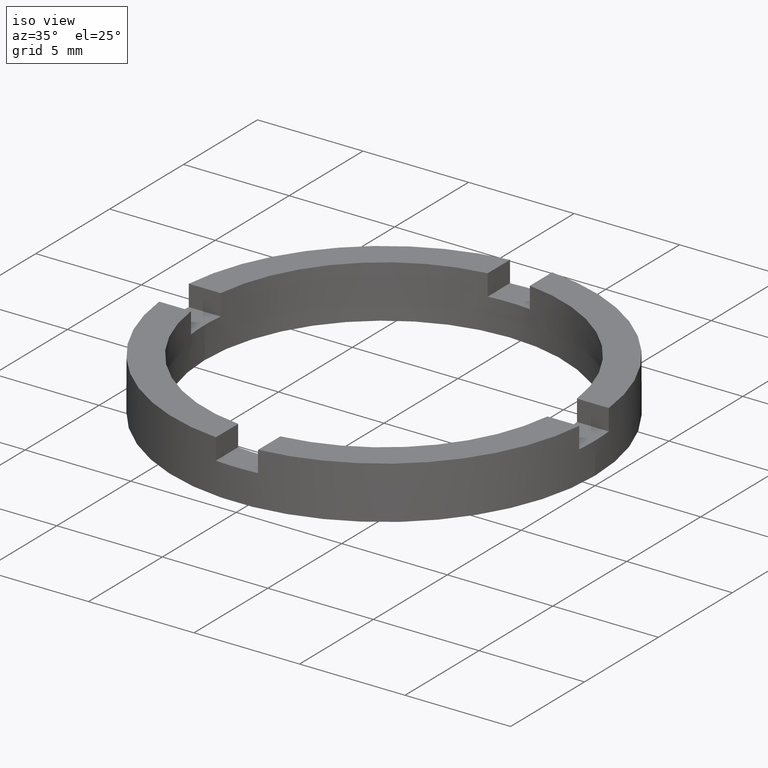
[diagram: clean part render]
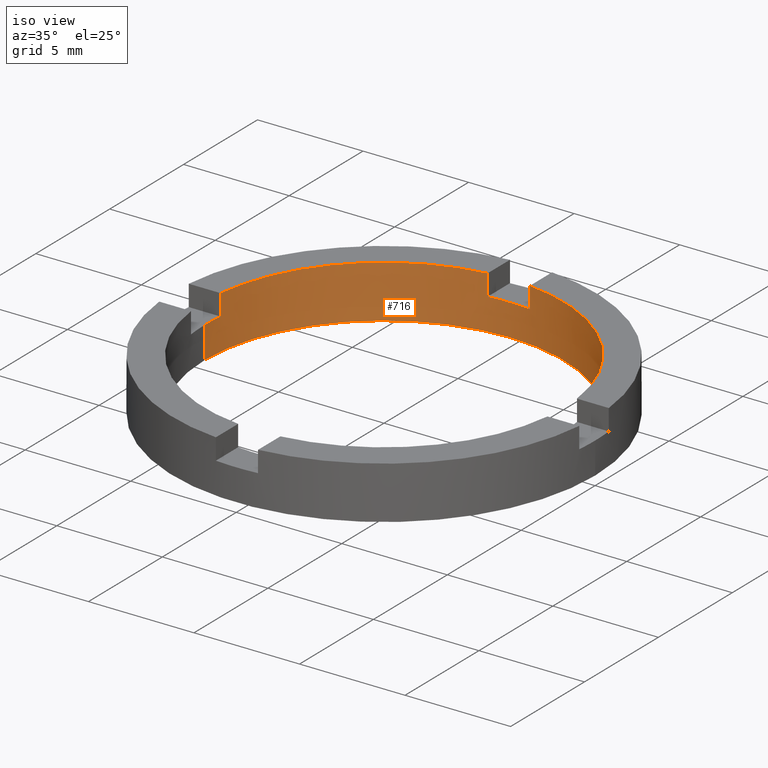
[diagram: same view with one face highlighted and labeled with its STEP entity id]
A machine part, iso view. The second image highlights one B-rep face of the part: STEP entity #716.
In plain terms, the highlighted cylindrical surface (partial cylindrical patch) has radius 8.5 mm, axis along (-0, -0, -1).
Its self-contained STEP definition (entity closure, byte-faithful):
#1 = ORIENTED_EDGE ( 'NONE', *, *, #573, .T. ) ;
#2 = ORIENTED_EDGE ( 'NONE', *, *, #240, .F. ) ;
#8 = ORIENTED_EDGE ( 'NONE', *, *, #330, .T. ) ;
#13 = VERTEX_POINT ( 'NONE', #334 ) ;
#14 = ORIENTED_EDGE ( 'NONE', *, *, #306, .T. ) ;
#26 = VERTEX_POINT ( 'NONE', #732 ) ;
#37 = EDGE_CURVE ( 'NONE', #282, #461, #416, .T. ) ;
#38 = CARTESIAN_POINT ( 'NONE',  ( -8.440971508067063311, 1.000000000000030642, 2.500000000000000000 ) ) ;
#52 = CARTESIAN_POINT ( 'NONE',  ( -8.500000000000000000, 0.000000000000000000, 2.500000000000000000 ) ) ;
#58 = DIRECTION ( 'NONE',  ( -1.000000000000000000, 0.000000000000000000, 0.000000000000000000 ) ) ;
#64 = AXIS2_PLACEMENT_3D ( 'NONE', #455, #761, #617 ) ;
#91 = ORIENTED_EDGE ( 'NONE', *, *, #500, .F. ) ;
#101 = CARTESIAN_POINT ( 'NONE',  ( 8.440971508067070417, 0.9999999999999672484, 1.500000000000000000 ) ) ;
#114 = EDGE_CURVE ( 'NONE', #742, #122, #161, .T. ) ;
#115 = ORIENTED_EDGE ( 'NONE', *, *, #608, .F. ) ;
#122 = VERTEX_POINT ( 'NONE', #399 ) ;
#124 = CIRCLE ( 'NONE', #441, 8.500000000000000000 ) ;
#142 = LINE ( 'NONE', #623, #405 ) ;
#161 = LINE ( 'NONE', #535, #425 ) ;
#165 = CIRCLE ( 'NONE', #64, 8.500000000000000000 ) ;
#168 = CIRCLE ( 'NONE', #561, 8.500000000000000000 ) ;
#173 = VERTEX_POINT ( 'NONE', #764 ) ;
#176 = DIRECTION ( 'NONE',  ( 1.000000000000000000, 4.440892098500626162E-15, 0.000000000000000000 ) ) ;
#183 = CIRCLE ( 'NONE', #602, 8.500000000000000000 ) ;
#185 = VERTEX_POINT ( 'NONE', #275 ) ;
#186 = FACE_OUTER_BOUND ( 'NONE', #280, .T. ) ;
#187 = VECTOR ( 'NONE', #295, 1000.000000000000000 ) ;
#189 = CIRCLE ( 'NONE', #297, 8.500000000000000000 ) ;
#212 = DIRECTION ( 'NONE',  ( -0.000000000000000000, -0.000000000000000000, -1.000000000000000000 ) ) ;
#225 = AXIS2_PLACEMENT_3D ( 'NONE', #314, #212, #58 ) ;
#229 = CARTESIAN_POINT ( 'NONE',  ( 0.000000000000000000, 0.000000000000000000, 0.000000000000000000 ) ) ;
#240 = EDGE_CURVE ( 'NONE', #461, #173, #423, .T. ) ;
#267 = DIRECTION ( 'NONE',  ( 1.000000000000000000, -1.509903313490213211E-14, 0.000000000000000000 ) ) ;
#275 = CARTESIAN_POINT ( 'NONE',  ( -8.440971508067063311, 1.000000000000030642, 1.500000000000000000 ) ) ;
#280 = EDGE_LOOP ( 'NONE', ( #454, #91, #288, #1, #2, #286, #560, #8, #115, #779, #14, #518 ) ) ;
#282 = VERTEX_POINT ( 'NONE', #545 ) ;
#286 = ORIENTED_EDGE ( 'NONE', *, *, #37, .F. ) ;
#288 = ORIENTED_EDGE ( 'NONE', *, *, #313, .T. ) ;
#291 = CARTESIAN_POINT ( 'NONE',  ( -0.9999999999999986677, 8.440971508067066864, 1.500000000000000000 ) ) ;
#295 = DIRECTION ( 'NONE',  ( -0.000000000000000000, -0.000000000000000000, 1.000000000000000000 ) ) ;
#297 = AXIS2_PLACEMENT_3D ( 'NONE', #591, #380, #588 ) ;
#298 = DIRECTION ( 'NONE',  ( -0.000000000000000000, -0.000000000000000000, 1.000000000000000000 ) ) ;
#301 = DIRECTION ( 'NONE',  ( 0.000000000000000000, -0.000000000000000000, -1.000000000000000000 ) ) ;
#306 = EDGE_CURVE ( 'NONE', #657, #341, #660, .T. ) ;
#313 = EDGE_CURVE ( 'NONE', #621, #26, #142, .T. ) ;
#314 = CARTESIAN_POINT ( 'NONE',  ( 0.000000000000000000, 0.000000000000000000, 2.500000000000000000 ) ) ;
#330 = EDGE_CURVE ( 'NONE', #13, #536, #124, .T. ) ;
#334 = CARTESIAN_POINT ( 'NONE',  ( -0.9999999999999986677, 8.440971508067066864, 2.500000000000000000 ) ) ;
#341 = VERTEX_POINT ( 'NONE', #361 ) ;
#346 = CARTESIAN_POINT ( 'NONE',  ( -8.440971508067063311, 1.000000000000030642, 1.500000000000000000 ) ) ;
#350 = CARTESIAN_POINT ( 'NONE',  ( 0.000000000000000000, 0.000000000000000000, 2.500000000000000000 ) ) ;
#353 = DIRECTION ( 'NONE',  ( 0.000000000000000000, 0.000000000000000000, 1.000000000000000000 ) ) ;
#361 = CARTESIAN_POINT ( 'NONE',  ( -8.500000000000000000, 0.000000000000000000, 0.000000000000000000 ) ) ;
#364 = CARTESIAN_POINT ( 'NONE',  ( 1.000000000000001332, 8.440971508067066864, 1.500000000000000000 ) ) ;
#375 = VECTOR ( 'NONE', #471, 1000.000000000000000 ) ;
#380 = DIRECTION ( 'NONE',  ( 0.000000000000000000, 0.000000000000000000, 1.000000000000000000 ) ) ;
#393 = DIRECTION ( 'NONE',  ( 1.000000000000000000, 0.000000000000000000, 0.000000000000000000 ) ) ;
#399 = CARTESIAN_POINT ( 'NONE',  ( 8.500000000000000000, 1.040949779275250140E-15, 0.000000000000000000 ) ) ;
#405 = VECTOR ( 'NONE', #298, 1000.000000000000000 ) ;
#416 = CIRCLE ( 'NONE', #780, 8.500000000000000000 ) ;
#423 = LINE ( 'NONE', #364, #375 ) ;
#425 = VECTOR ( 'NONE', #585, 1000.000000000000000 ) ;
#433 = DIRECTION ( 'NONE',  ( -0.000000000000000000, -0.000000000000000000, 1.000000000000000000 ) ) ;
#436 = LINE ( 'NONE', #346, #718 ) ;
#440 = CYLINDRICAL_SURFACE ( 'NONE', #225, 8.500000000000000000 ) ;
#441 = AXIS2_PLACEMENT_3D ( 'NONE', #350, #353, #444 ) ;
#444 = DIRECTION ( 'NONE',  ( 1.000000000000000000, 0.000000000000000000, 0.000000000000000000 ) ) ;
#454 = ORIENTED_EDGE ( 'NONE', *, *, #114, .F. ) ;
#455 = CARTESIAN_POINT ( 'NONE',  ( 0.000000000000000000, 0.000000000000000000, 1.500000000000000000 ) ) ;
#461 = VERTEX_POINT ( 'NONE', #583 ) ;
#465 = EDGE_CURVE ( 'NONE', #657, #185, #165, .T. ) ;
#471 = DIRECTION ( 'NONE',  ( -0.000000000000000000, -0.000000000000000000, 1.000000000000000000 ) ) ;
#486 = DIRECTION ( 'NONE',  ( -0.000000000000000000, -0.000000000000000000, -1.000000000000000000 ) ) ;
#500 = EDGE_CURVE ( 'NONE', #621, #742, #168, .T. ) ;
#518 = ORIENTED_EDGE ( 'NONE', *, *, #544, .F. ) ;
#535 = CARTESIAN_POINT ( 'NONE',  ( 8.500000000000000000, 1.040949779275250140E-15, 2.500000000000000000 ) ) ;
#536 = VERTEX_POINT ( 'NONE', #38 ) ;
#538 = DIRECTION ( 'NONE',  ( 0.000000000000000000, 0.000000000000000000, 1.000000000000000000 ) ) ;
#540 = CARTESIAN_POINT ( 'NONE',  ( 0.000000000000000000, 0.000000000000000000, 1.500000000000000000 ) ) ;
#544 = EDGE_CURVE ( 'NONE', #122, #341, #183, .T. ) ;
#545 = CARTESIAN_POINT ( 'NONE',  ( -0.9999999999999986677, 8.440971508067066864, 1.500000000000000000 ) ) ;
#560 = ORIENTED_EDGE ( 'NONE', *, *, #566, .T. ) ;
#561 = AXIS2_PLACEMENT_3D ( 'NONE', #615, #766, #267 ) ;
#566 = EDGE_CURVE ( 'NONE', #282, #13, #735, .T. ) ;
#572 = CARTESIAN_POINT ( 'NONE',  ( -8.500000000000000000, 0.000000000000000000, 1.500000000000000000 ) ) ;
#573 = EDGE_CURVE ( 'NONE', #26, #173, #189, .T. ) ;
#583 = CARTESIAN_POINT ( 'NONE',  ( 1.000000000000001332, 8.440971508067066864, 1.500000000000000000 ) ) ;
#585 = DIRECTION ( 'NONE',  ( -0.000000000000000000, -0.000000000000000000, -1.000000000000000000 ) ) ;
#588 = DIRECTION ( 'NONE',  ( 1.000000000000000000, 0.000000000000000000, 0.000000000000000000 ) ) ;
#591 = CARTESIAN_POINT ( 'NONE',  ( 0.000000000000000000, 0.000000000000000000, 2.500000000000000000 ) ) ;
#597 = CARTESIAN_POINT ( 'NONE',  ( 8.500000000000000000, 1.040949779275250140E-15, 1.500000000000000000 ) ) ;
#602 = AXIS2_PLACEMENT_3D ( 'NONE', #229, #538, #393 ) ;
#608 = EDGE_CURVE ( 'NONE', #185, #536, #436, .T. ) ;
#615 = CARTESIAN_POINT ( 'NONE',  ( 0.000000000000000000, 0.000000000000000000, 1.500000000000000000 ) ) ;
#617 = DIRECTION ( 'NONE',  ( 1.000000000000000000, 0.000000000000000000, 0.000000000000000000 ) ) ;
#621 = VERTEX_POINT ( 'NONE', #101 ) ;
#623 = CARTESIAN_POINT ( 'NONE',  ( 8.440971508067070417, 0.9999999999999672484, 1.500000000000000000 ) ) ;
#657 = VERTEX_POINT ( 'NONE', #572 ) ;
#660 = LINE ( 'NONE', #52, #692 ) ;
#692 = VECTOR ( 'NONE', #486, 1000.000000000000000 ) ;
#716 = ADVANCED_FACE ( 'NONE', ( #186 ), #440, .F. ) ;
#718 = VECTOR ( 'NONE', #433, 1000.000000000000000 ) ;
#732 = CARTESIAN_POINT ( 'NONE',  ( 8.440971508067070417, 0.9999999999999672484, 2.500000000000000000 ) ) ;
#735 = LINE ( 'NONE', #291, #187 ) ;
#742 = VERTEX_POINT ( 'NONE', #597 ) ;
#761 = DIRECTION ( 'NONE',  ( 0.000000000000000000, -0.000000000000000000, -1.000000000000000000 ) ) ;
#764 = CARTESIAN_POINT ( 'NONE',  ( 1.000000000000001332, 8.440971508067066864, 2.500000000000000000 ) ) ;
#766 = DIRECTION ( 'NONE',  ( 0.000000000000000000, -0.000000000000000000, -1.000000000000000000 ) ) ;
#779 = ORIENTED_EDGE ( 'NONE', *, *, #465, .F. ) ;
#780 = AXIS2_PLACEMENT_3D ( 'NONE', #540, #301, #176 ) ;